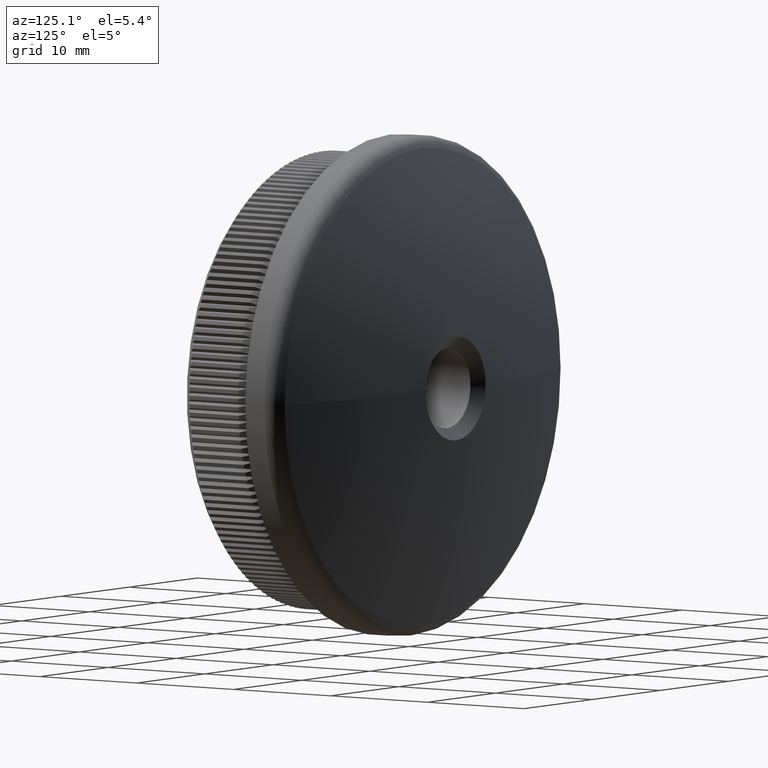
[diagram: clean part render]
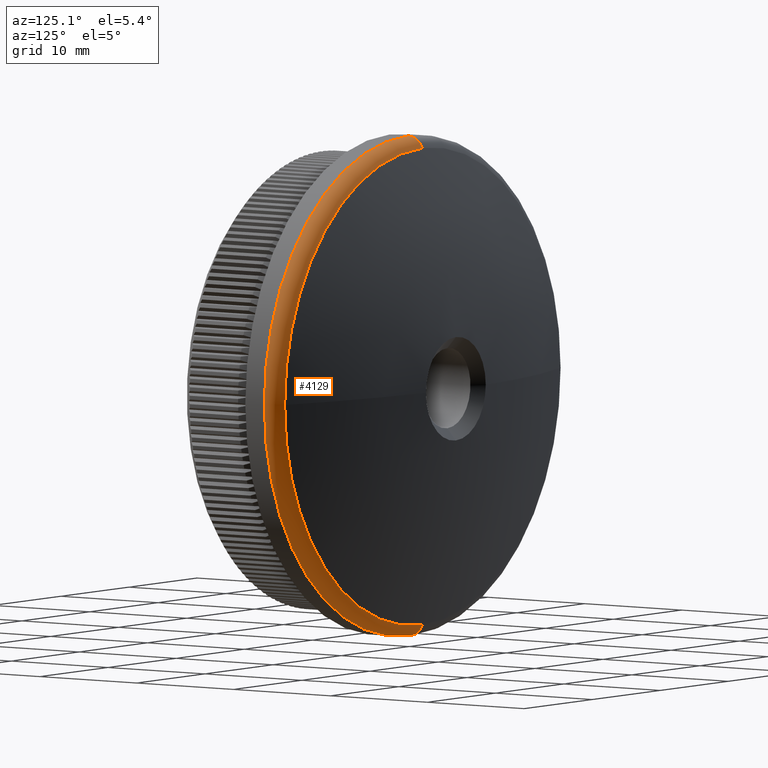
[diagram: same view with one face highlighted and labeled with its STEP entity id]
A machine part, auxiliary view. The second image highlights one B-rep face of the part: STEP entity #4129.
In plain terms, the highlighted toroidal blend (fillet) surface has major radius 19.7 mm and minor (blend) radius 1.5 mm.
Its self-contained STEP definition (entity closure, byte-faithful):
#924 = EDGE_CURVE ( 'NONE', #30257, #22339, #29380, .T. ) ;
#1426 = EDGE_CURVE ( 'NONE', #25352, #30257, #20784, .T. ) ;
#4129 = ADVANCED_FACE ( 'NONE', ( #22203 ), #11053, .T. ) ;
#4579 = DIRECTION ( 'NONE',  ( 0.0000000000000000000, 1.000000000000000000, 0.0000000000000000000 ) ) ;
#4883 = DIRECTION ( 'NONE',  ( -1.224646799147352000E-016, 0.0000000000000000000, -1.000000000000000000 ) ) ;
#5141 = EDGE_CURVE ( 'NONE', #9774, #25352, #19929, .T. ) ;
#5376 = DIRECTION ( 'NONE',  ( 0.0000000000000000000, 0.0000000000000000000, 1.000000000000000000 ) ) ;
#6671 = DIRECTION ( 'NONE',  ( 0.0000000000000000000, 0.0000000000000000000, -1.000000000000000000 ) ) ;
#6986 = CARTESIAN_POINT ( 'NONE',  ( 0.0000000000000000000, 9.966330070852492900, -21.20000000000000300 ) ) ;
#7272 = CARTESIAN_POINT ( 'NONE',  ( 2.412554194320286400E-015, 9.966330070852492900, 19.70000000000000300 ) ) ;
#7434 = AXIS2_PLACEMENT_3D ( 'NONE', #10141, #19467, #29128 ) ;
#7454 = DIRECTION ( 'NONE',  ( -0.0000000000000000000, -1.000000000000000000, -0.0000000000000000000 ) ) ;
#8385 = ORIENTED_EDGE ( 'NONE', *, *, #1426, .F. ) ;
#9774 = VERTEX_POINT ( 'NONE', #27485 ) ;
#10141 = CARTESIAN_POINT ( 'NONE',  ( 0.0000000000000000000, 11.37281375303810000, 0.0000000000000000000 ) ) ;
#10353 = CARTESIAN_POINT ( 'NONE',  ( 0.0000000000000000000, 9.966330070852492900, -19.70000000000000300 ) ) ;
#11053 = TOROIDAL_SURFACE ( 'NONE', #11594, 19.70000000000000300, 1.500000000000000000 ) ;
#11594 = AXIS2_PLACEMENT_3D ( 'NONE', #23568, #7454, #26744 ) ;
#11711 = CARTESIAN_POINT ( 'NONE',  ( 0.0000000000000000000, 11.37281375303810000, 0.0000000000000000000 ) ) ;
#11923 = CIRCLE ( 'NONE', #24087, 20.22134791813691000 ) ;
#12718 = AXIS2_PLACEMENT_3D ( 'NONE', #18659, #21086, #18762 ) ;
#12953 = CIRCLE ( 'NONE', #17106, 1.500000000000001300 ) ;
#13061 = CARTESIAN_POINT ( 'NONE',  ( 0.0000000000000000000, 11.37281375303810000, -20.22134791813691000 ) ) ;
#16673 = DIRECTION ( 'NONE',  ( 1.000000000000000000, 0.0000000000000000000, -1.224646799147353500E-016 ) ) ;
#17106 = AXIS2_PLACEMENT_3D ( 'NONE', #7272, #16673, #4883 ) ;
#18659 = CARTESIAN_POINT ( 'NONE',  ( 0.0000000000000000000, 9.966330070852492900, 0.0000000000000000000 ) ) ;
#18762 = DIRECTION ( 'NONE',  ( 0.0000000000000000000, 0.0000000000000000000, -1.000000000000000000 ) ) ;
#19467 = DIRECTION ( 'NONE',  ( 0.0000000000000000000, 1.000000000000000000, 0.0000000000000000000 ) ) ;
#19929 = CIRCLE ( 'NONE', #7434, 20.22134791813691000 ) ;
#20784 = CIRCLE ( 'NONE', #29660, 1.500000000000001300 ) ;
#21086 = DIRECTION ( 'NONE',  ( -0.0000000000000000000, -1.000000000000000000, -0.0000000000000000000 ) ) ;
#21969 = DIRECTION ( 'NONE',  ( -1.000000000000000000, 0.0000000000000000000, 0.0000000000000000000 ) ) ;
#22203 = FACE_OUTER_BOUND ( 'NONE', #28240, .T. ) ;
#22339 = VERTEX_POINT ( 'NONE', #26395 ) ;
#23475 = ORIENTED_EDGE ( 'NONE', *, *, #25608, .F. ) ;
#23568 = CARTESIAN_POINT ( 'NONE',  ( 0.0000000000000000000, 9.966330070852492900, 0.0000000000000000000 ) ) ;
#23919 = ORIENTED_EDGE ( 'NONE', *, *, #924, .F. ) ;
#24087 = AXIS2_PLACEMENT_3D ( 'NONE', #11711, #4579, #6671 ) ;
#25352 = VERTEX_POINT ( 'NONE', #13061 ) ;
#25381 = VERTEX_POINT ( 'NONE', #27002 ) ;
#25608 = EDGE_CURVE ( 'NONE', #25381, #9774, #11923, .T. ) ;
#26395 = CARTESIAN_POINT ( 'NONE',  ( 2.596251214192389200E-015, 9.966330070852492900, 21.20000000000000300 ) ) ;
#26603 = ORIENTED_EDGE ( 'NONE', *, *, #5141, .F. ) ;
#26744 = DIRECTION ( 'NONE',  ( 0.0000000000000000000, 0.0000000000000000000, -1.000000000000000000 ) ) ;
#27002 = CARTESIAN_POINT ( 'NONE',  ( 2.536326057215763400E-015, 11.37281375303810000, 20.22134791813691000 ) ) ;
#27485 = CARTESIAN_POINT ( 'NONE',  ( 20.22134791813689200, 11.37281375303809700, 0.0000000000000000000 ) ) ;
#27709 = EDGE_CURVE ( 'NONE', #25381, #22339, #12953, .T. ) ;
#28240 = EDGE_LOOP ( 'NONE', ( #23475, #29594, #23919, #8385, #26603 ) ) ;
#29128 = DIRECTION ( 'NONE',  ( 0.0000000000000000000, 0.0000000000000000000, -1.000000000000000000 ) ) ;
#29380 = CIRCLE ( 'NONE', #12718, 21.20000000000000300 ) ;
#29594 = ORIENTED_EDGE ( 'NONE', *, *, #27709, .T. ) ;
#29660 = AXIS2_PLACEMENT_3D ( 'NONE', #10353, #21969, #5376 ) ;
#30257 = VERTEX_POINT ( 'NONE', #6986 ) ;